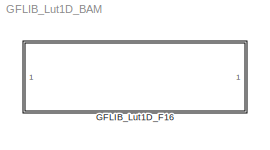
MODEL GFLIB_Lut1D_BAM
KIND model
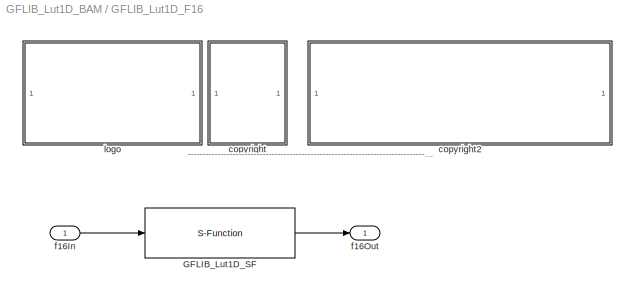
BLOCK [SubSystem] GFLIB_Lut1D_F16
  FunctionWithSeparateData = off
  MaskCallbackString = ||
  MaskDescription = Bit accurate model of Lut1D function.
  MaskDisplay = color('black');port_label('input',1,'f16In');port_label('output',1,'f16Out');color('black');disp('GFLIB_Lut1D_F16');color('blue');text(tX,tY, 'BAM', 'horizontalAlignment', 'center');
  MaskEnableString = on,on,on
  MaskHideContents = off
  MaskIconFrame = on
  MaskIconOpaque = on
  MaskIconRotate = none
  MaskIconUnits = pixels
  MaskInitialization = pos = get_param(gcb, 'Position');width = pos(3) - pos(1); height = pos(4) - pos(2);tX=width/2;tY=height*0.9;
  MaskPortRotate = default
  MaskPromptString = u16ShamOffset|pf16Table|s16MidIdx
  MaskStyleString = edit,edit,edit
  MaskTabNameString = ,,
  MaskToolTipString = on,on,on
  MaskTunableValueString = on,on,on
  MaskType = GFLIB_Lut1D_F16
  MaskValueString = u16ShamOffset|pf16Table|s16MidIdx
  MaskVarAliasString = ,,
  MaskVariables = u16ShamOffset=@1;pf16Table=@2;s16MidIdx=@3;
  MaskVisibilityString = on,on,on
  MinAlgLoopOccurrences = off
  Opaque = off
  Ports = [1, 1]
  PropExecContextOutsideSubsystem = off
  RTWSystemCode = Auto
  RequestExecContextInheritance = off
BLOCK [S-Function] GFLIB_Lut1D_F16/GFLIB_Lut1D_SF
  EnableBusSupport = off
  FunctionName = GFLIB_Lut1D_SF_F16
  Parameters = u16ShamOffset,pf16Table,s16MidIdx
  Ports = [1, 1]
BLOCK [SubSystem] GFLIB_Lut1D_F16/<copyright redacted>
  FunctionWithSeparateData = off
  MaskDisplay = text(10,90,'FILE:');text(10,75,'DESRIPTION:')text(10,60,'<copyright redacted>
  MaskHideContents = off
  MaskIconFrame = off
  MaskIconOpaque = on
  MaskIconRotate = none
  MaskIconUnits = pixels
  MaskPortRotate = default
  MinAlgLoopOccurrences = off
  Opaque = off
  Ports = []
  PropExecContextOutsideSubsystem = off
  RTWSystemCode = Auto
  RequestExecContextInheritance = off
BLOCK [SubSystem] GFLIB_Lut1D_F16/copyright2
  FunctionWithSeparateData = off
  MaskDisplay = text(10,90,'GFLIB_Lut1D_BAM_F16.mdl');text(10,75,'One dimensional Look-up table function');text(10,60,'Freescale')text(10,45,'0.1');text(10,30,'17-Jun-2013');
  MaskHideContents = off
  MaskIconFrame = off
  MaskIconOpaque = on
  MaskIconRotate = none
  MaskIconUnits = pixels
  MaskPortRotate = default
  MinAlgLoopOccurrences = off
  Opaque = off
  Ports = []
  PropExecContextOutsideSubsystem = off
  RTWSystemCode = Auto
  RequestExecContextInheritance = off
BLOCK [Inport] GFLIB_Lut1D_F16/f16In
  IconDisplay = Port number
  OutDataType = fixdt(1, 16)
  OutScaling = 2^0
BLOCK [Outport] GFLIB_Lut1D_F16/f16Out
  IconDisplay = Port number
  OutDataType = fixdt(1, 16)
  OutScaling = 2^0
BLOCK [SubSystem] GFLIB_Lut1D_F16/logo
  FunctionWithSeparateData = off
  MaskDisplay = image(imread('logo.jpg'))
  MaskHideContents = off
  MaskIconFrame = off
  MaskIconOpaque = on
  MaskIconRotate = none
  MaskIconUnits = autoscale
  MaskPortRotate = default
  MinAlgLoopOccurrences = off
  Opaque = off
  Ports = []
  PropExecContextOutsideSubsystem = off
  RTWSystemCode = Auto
  RequestExecContextInheritance = off
ANNOTATION GFLIB_Lut1D_F16: ---------------------------------------------------------------------------------------------------------------------------------------------------------------------------------------------------
LINE GFLIB_Lut1D_F16/GFLIB_Lut1D_SF:1 -> GFLIB_Lut1D_F16/f16Out:1
LINE GFLIB_Lut1D_F16/f16In:1 -> GFLIB_Lut1D_F16/GFLIB_Lut1D_SF:1
